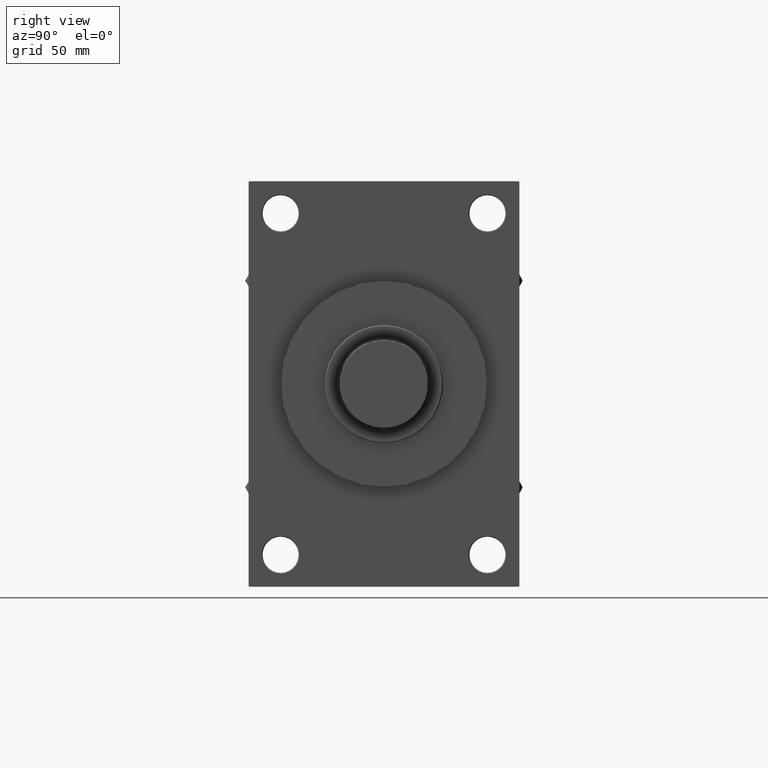
[diagram: clean part render]
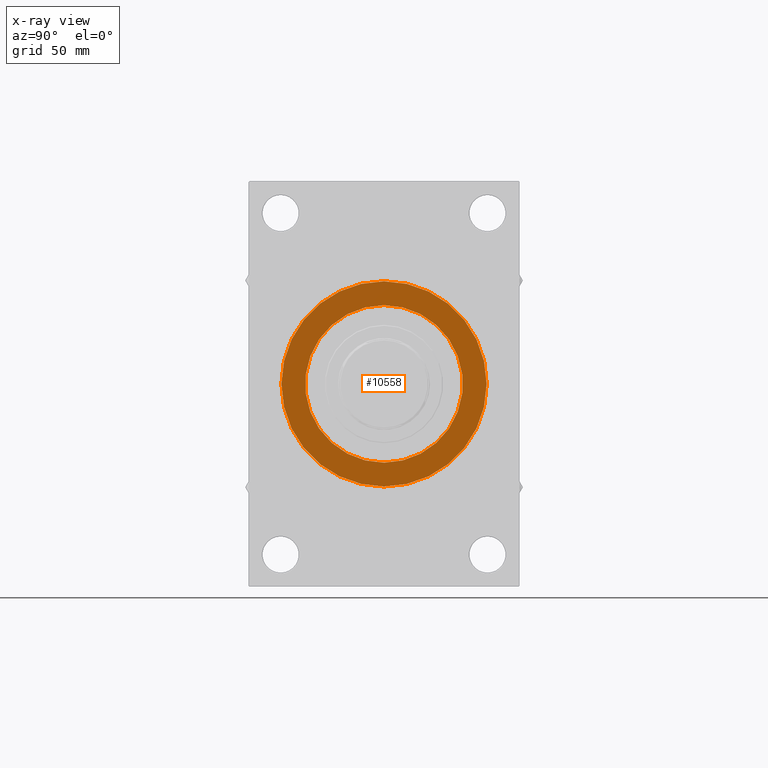
[diagram: x-ray — body ghosted, one internal face saturated and labeled with its STEP entity id]
A machine part, right view, then the same camera in x-ray: the body is ghosted and one INTERNAL B-rep face — a face not visible from any outside direction — is saturated and labeled: STEP entity #10558.
In plain terms, the highlighted planar face has unit normal (-1, 0, 0).
Its self-contained STEP definition (entity closure, byte-faithful):
#578 = CARTESIAN_POINT ( 'NONE',  ( 139.0000000000000000, -2.602085213965210642E-15, 0.000000000000000000 ) ) ;
#1624 = FACE_BOUND ( 'NONE', #9187, .T. ) ;
#2138 = CIRCLE ( 'NONE', #30914, 62.50000000000000000 ) ;
#3224 = CARTESIAN_POINT ( 'NONE',  ( 139.0000000000000000, 0.000000000000000000, 0.000000000000000000 ) ) ;
#3791 = DIRECTION ( 'NONE',  ( 1.000000000000000000, 0.000000000000000000, 0.000000000000000000 ) ) ;
#4169 = EDGE_CURVE ( 'NONE', #23103, #28826, #7264, .T. ) ;
#4171 = ORIENTED_EDGE ( 'NONE', *, *, #36067, .F. ) ;
#4717 = DIRECTION ( 'NONE',  ( 0.000000000000000000, 0.000000000000000000, -1.000000000000000000 ) ) ;
#5493 = ORIENTED_EDGE ( 'NONE', *, *, #43950, .F. ) ;
#7264 = CIRCLE ( 'NONE', #46920, 62.50000000000000000 ) ;
#7445 = CARTESIAN_POINT ( 'NONE',  ( 139.0000000000000000, -2.602085213965210642E-15, 0.000000000000000000 ) ) ;
#9187 = EDGE_LOOP ( 'NONE', ( #5493, #4171 ) ) ;
#9194 = CIRCLE ( 'NONE', #41830, 48.00000000000000711 ) ;
#10545 = CARTESIAN_POINT ( 'NONE',  ( 139.0000000000000000, 0.000000000000000000, 0.000000000000000000 ) ) ;
#10558 = ADVANCED_FACE ( 'NONE', ( #1624, #27193 ), #12352, .T. ) ;
#12113 = CARTESIAN_POINT ( 'NONE',  ( 139.0000000000000000, 0.000000000000000000, 0.000000000000000000 ) ) ;
#12352 = PLANE ( 'NONE',  #19936 ) ;
#12593 = DIRECTION ( 'NONE',  ( -0.000000000000000000, 0.000000000000000000, 1.000000000000000000 ) ) ;
#13068 = DIRECTION ( 'NONE',  ( -1.000000000000000000, 0.000000000000000000, -0.000000000000000000 ) ) ;
#16508 = CIRCLE ( 'NONE', #33613, 48.00000000000000711 ) ;
#18506 = CARTESIAN_POINT ( 'NONE',  ( 139.0000000000000000, 0.000000000000000000, -48.00000000000000711 ) ) ;
#19936 = AXIS2_PLACEMENT_3D ( 'NONE', #12113, #13068, #12593 ) ;
#22117 = EDGE_CURVE ( 'NONE', #28826, #23103, #2138, .T. ) ;
#23103 = VERTEX_POINT ( 'NONE', #39620 ) ;
#24763 = EDGE_LOOP ( 'NONE', ( #47796, #28063 ) ) ;
#25178 = CARTESIAN_POINT ( 'NONE',  ( 139.0000000000000000, -2.602085213965210642E-15, 62.50000000000000000 ) ) ;
#27193 = FACE_OUTER_BOUND ( 'NONE', #24763, .T. ) ;
#28063 = ORIENTED_EDGE ( 'NONE', *, *, #4169, .F. ) ;
#28794 = DIRECTION ( 'NONE',  ( -1.000000000000000000, 0.000000000000000000, -0.000000000000000000 ) ) ;
#28826 = VERTEX_POINT ( 'NONE', #25178 ) ;
#29032 = DIRECTION ( 'NONE',  ( 0.000000000000000000, 0.000000000000000000, 1.000000000000000000 ) ) ;
#30914 = AXIS2_PLACEMENT_3D ( 'NONE', #7445, #3791, #38363 ) ;
#32922 = DIRECTION ( 'NONE',  ( 0.000000000000000000, 0.000000000000000000, 1.000000000000000000 ) ) ;
#33613 = AXIS2_PLACEMENT_3D ( 'NONE', #10545, #35868, #32922 ) ;
#35868 = DIRECTION ( 'NONE',  ( -1.000000000000000000, 0.000000000000000000, -0.000000000000000000 ) ) ;
#35933 = CARTESIAN_POINT ( 'NONE',  ( 139.0000000000000000, 5.878304635907296578E-15, 48.00000000000000711 ) ) ;
#36067 = EDGE_CURVE ( 'NONE', #44640, #39384, #16508, .T. ) ;
#38314 = DIRECTION ( 'NONE',  ( 1.000000000000000000, 0.000000000000000000, 0.000000000000000000 ) ) ;
#38363 = DIRECTION ( 'NONE',  ( 0.000000000000000000, 0.000000000000000000, -1.000000000000000000 ) ) ;
#39384 = VERTEX_POINT ( 'NONE', #18506 ) ;
#39620 = CARTESIAN_POINT ( 'NONE',  ( 139.0000000000000000, 5.051957280705745584E-15, -62.50000000000000000 ) ) ;
#41830 = AXIS2_PLACEMENT_3D ( 'NONE', #3224, #28794, #29032 ) ;
#43950 = EDGE_CURVE ( 'NONE', #39384, #44640, #9194, .T. ) ;
#44640 = VERTEX_POINT ( 'NONE', #35933 ) ;
#46920 = AXIS2_PLACEMENT_3D ( 'NONE', #578, #38314, #4717 ) ;
#47796 = ORIENTED_EDGE ( 'NONE', *, *, #22117, .F. ) ;